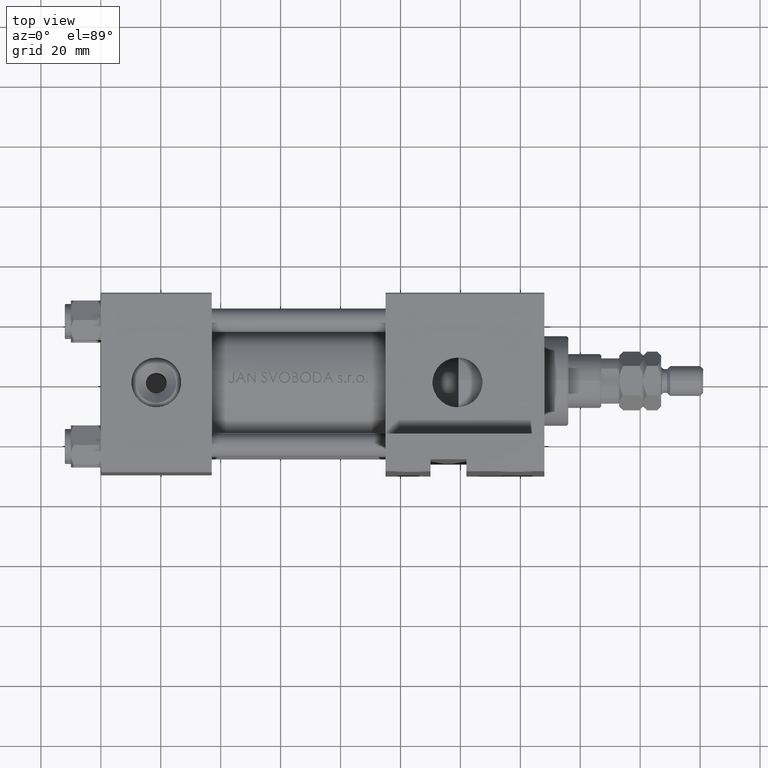
[diagram: clean part render]
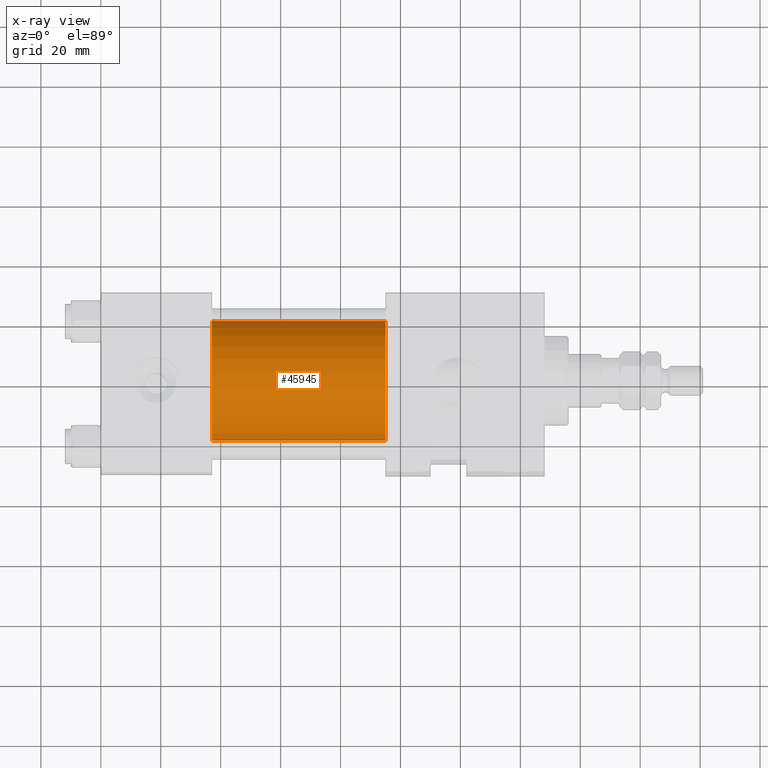
[diagram: x-ray — body ghosted, one internal face saturated and labeled with its STEP entity id]
A machine part, top view, then the same camera in x-ray: the body is ghosted and one INTERNAL B-rep face — a face not visible from any outside direction — is saturated and labeled: STEP entity #45945.
In plain terms, the highlighted cylindrical surface (partial cylindrical patch) has radius 20 mm, axis along (-1, -0, 0).
Its self-contained STEP definition (entity closure, byte-faithful):
#611 = CARTESIAN_POINT ( 'NONE',  ( 37.00000000000000000, -1.224646799147354686E-16, 1.000000000000000888 ) ) ;
#876 = DIRECTION ( 'NONE',  ( 1.000000000000000000, 0.000000000000000000, 0.000000000000000000 ) ) ;
#1117 = VERTEX_POINT ( 'NONE', #10322 ) ;
#1393 = DIRECTION ( 'NONE',  ( -1.000000000000000000, -0.000000000000000000, -0.000000000000000000 ) ) ;
#1652 = CYLINDRICAL_SURFACE ( 'NONE', #38553, 20.00000000000000000 ) ;
#4595 = DIRECTION ( 'NONE',  ( -1.000000000000000000, -0.000000000000000000, -0.000000000000000000 ) ) ;
#6528 = DIRECTION ( 'NONE',  ( 1.000000000000000000, 0.000000000000000000, 0.000000000000000000 ) ) ;
#8594 = CARTESIAN_POINT ( 'NONE',  ( 95.00000000000000000, 2.326828918379970576E-15, -19.00000000000000000 ) ) ;
#8730 = VECTOR ( 'NONE', #4595, 1000.000000000000000 ) ;
#8828 = CARTESIAN_POINT ( 'NONE',  ( 95.00000000000000000, 2.326828918379970576E-15, -19.00000000000000000 ) ) ;
#9352 = FACE_OUTER_BOUND ( 'NONE', #43083, .T. ) ;
#10322 = CARTESIAN_POINT ( 'NONE',  ( 95.00000000000000000, -1.224646799147354686E-16, 21.00000000000000000 ) ) ;
#11692 = EDGE_CURVE ( 'NONE', #1117, #48652, #19295, .T. ) ;
#11737 = CARTESIAN_POINT ( 'NONE',  ( 95.00000000000000000, -1.224646799147354686E-16, 1.000000000000000888 ) ) ;
#17028 = LINE ( 'NONE', #8828, #8730 ) ;
#19295 = LINE ( 'NONE', #47099, #44162 ) ;
#22655 = DIRECTION ( 'NONE',  ( 0.000000000000000000, 0.000000000000000000, -1.000000000000000000 ) ) ;
#23735 = ORIENTED_EDGE ( 'NONE', *, *, #38463, .T. ) ;
#24001 = AXIS2_PLACEMENT_3D ( 'NONE', #11737, #6528, #22655 ) ;
#24840 = CIRCLE ( 'NONE', #24001, 20.00000000000000000 ) ;
#25006 = ORIENTED_EDGE ( 'NONE', *, *, #36487, .T. ) ;
#25634 = VERTEX_POINT ( 'NONE', #8594 ) ;
#26624 = CIRCLE ( 'NONE', #49448, 20.00000000000000000 ) ;
#27746 = DIRECTION ( 'NONE',  ( -1.000000000000000000, -0.000000000000000000, -0.000000000000000000 ) ) ;
#30241 = DIRECTION ( 'NONE',  ( 0.000000000000000000, 0.000000000000000000, 1.000000000000000000 ) ) ;
#30815 = ORIENTED_EDGE ( 'NONE', *, *, #40078, .F. ) ;
#31141 = VERTEX_POINT ( 'NONE', #40013 ) ;
#33415 = CARTESIAN_POINT ( 'NONE',  ( 95.00000000000000000, -1.224646799147354686E-16, 1.000000000000000888 ) ) ;
#35584 = CARTESIAN_POINT ( 'NONE',  ( 37.00000000000000000, -1.224646799147354686E-16, 21.00000000000000000 ) ) ;
#36487 = EDGE_CURVE ( 'NONE', #25634, #31141, #17028, .T. ) ;
#38463 = EDGE_CURVE ( 'NONE', #1117, #25634, #24840, .T. ) ;
#38553 = AXIS2_PLACEMENT_3D ( 'NONE', #33415, #1393, #30241 ) ;
#40013 = CARTESIAN_POINT ( 'NONE',  ( 37.00000000000000000, 2.326828918379970576E-15, -19.00000000000000000 ) ) ;
#40078 = EDGE_CURVE ( 'NONE', #48652, #31141, #26624, .T. ) ;
#42882 = ORIENTED_EDGE ( 'NONE', *, *, #11692, .F. ) ;
#43083 = EDGE_LOOP ( 'NONE', ( #23735, #25006, #30815, #42882 ) ) ;
#44162 = VECTOR ( 'NONE', #27746, 1000.000000000000000 ) ;
#45945 = ADVANCED_FACE ( 'NONE', ( #9352 ), #1652, .F. ) ;
#47099 = CARTESIAN_POINT ( 'NONE',  ( 95.00000000000000000, -1.224646799147354686E-16, 21.00000000000000000 ) ) ;
#47848 = DIRECTION ( 'NONE',  ( 0.000000000000000000, 0.000000000000000000, -1.000000000000000000 ) ) ;
#48652 = VERTEX_POINT ( 'NONE', #35584 ) ;
#49448 = AXIS2_PLACEMENT_3D ( 'NONE', #611, #876, #47848 ) ;